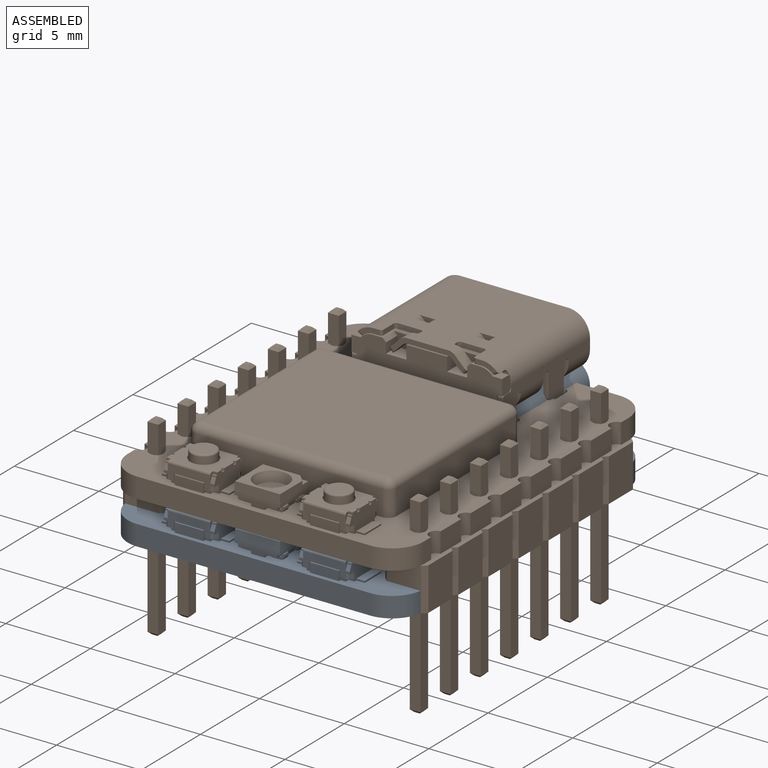
[diagram: assembled view]
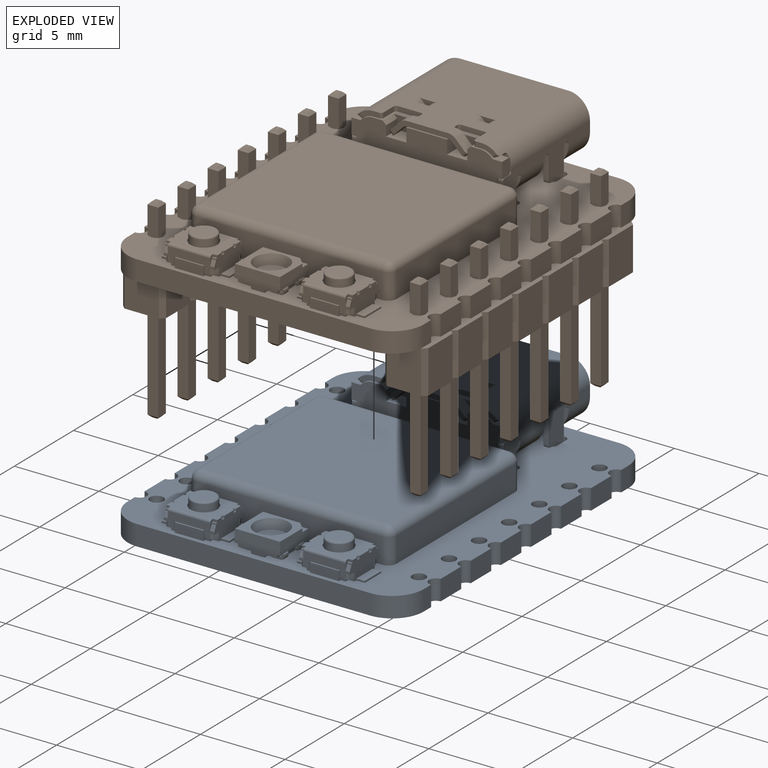
[diagram: exploded view]
GUIDED TOUR — FREECAD ASSEMBLY "Seeed_Studio_Xiao_RP2040"

This assembly has 2 components, labeled P0..P1 below (a component is one placed body or linked part; the same part can appear more than once), held together by 0 modeled joints plus 1 derived contact edge. A joint is a constraint between two components; its type names the relative motion it leaves free:
  CONTACT — a derived adjacency edge — the two components touch in the source model (clearance under 2% of the assembly's diagonal); it is measured from the geometry, not a modeled constraint.
Axis/direction vectors are unit vectors and 'through' points are millimeter coordinates, both in the assembly's world frame.

MATES
  1. CONTACT "contact_0_1": P0 <-> P1, contact direction (0.000, 0.000, 1.000) through (1.23, 6.20, 4.20) mm (derived from contact, not a modeled constraint)

ASSEMBLY ORDER
  1. P0 — the base component [order heuristic]
  2. P1 [order heuristic]
Order-tag legend:
  [order heuristic] — this assembly is geometrically interlocked (no collision-free removal order exists), so components are listed in mate-graph order; insertion feasibility is not verified.

Of the 2 components, 1 carries a construction recipe — the FreeCAD feature program (sketches with constraints, then the solid features that consume them) that regenerates the part from scratch, quoted from this document or from the linked companion document it references; the rest are supplied as boundary geometry only. The tour below walks the components in assembly order: each is shown spotlighted twice — in the assembled view, then in the exploded view, where a leader line traces a displaced component back to its assembled socket (components that stay in place when exploded have no leader line; saturated green if recipe-attached, orange if geometry-only; every other component desaturated gray) — followed by its recipe or geometry summary and the mates that hold it.
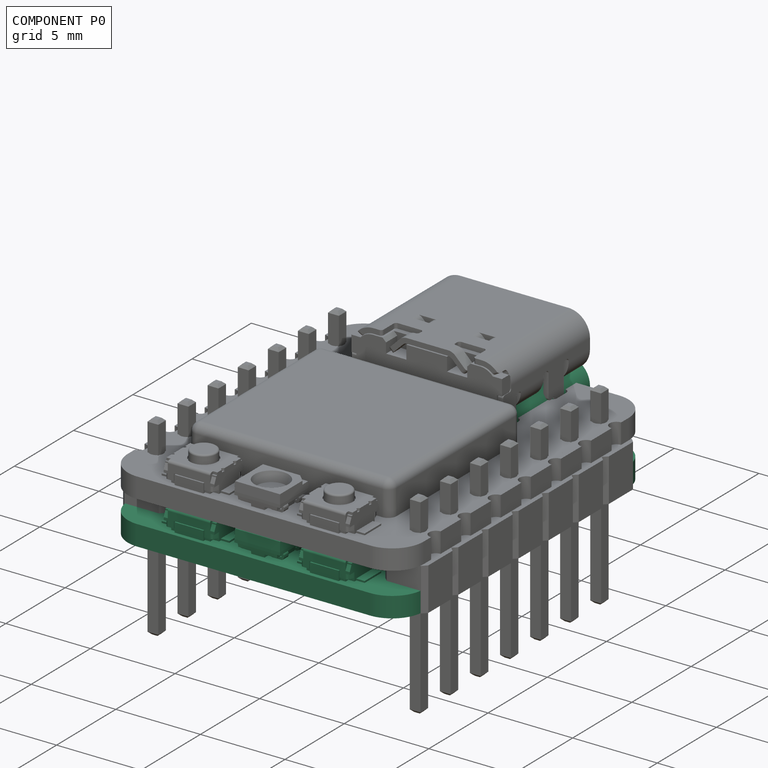
[diagram: component P0 — assembled]
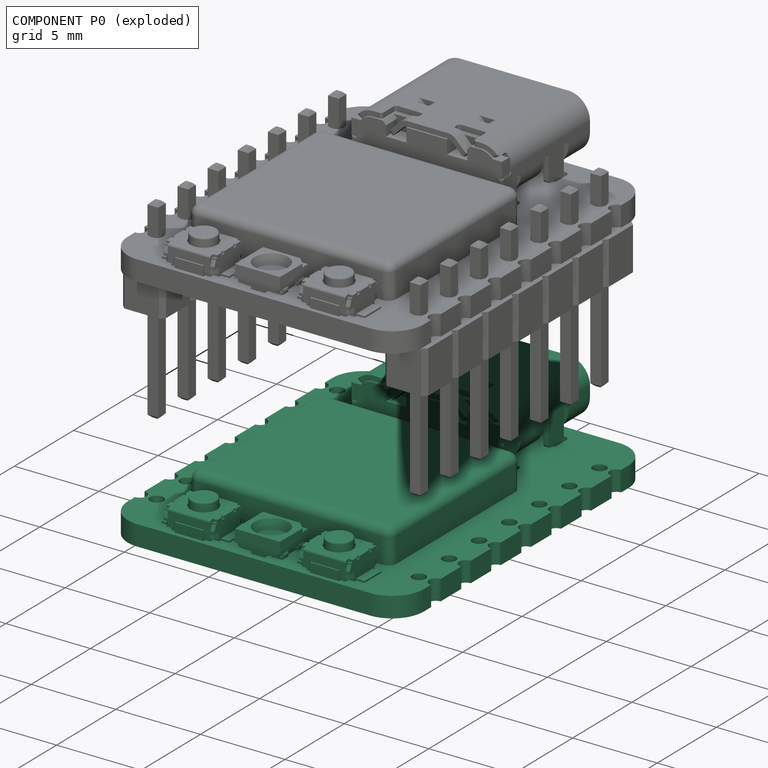
[diagram: component P0 — exploded]
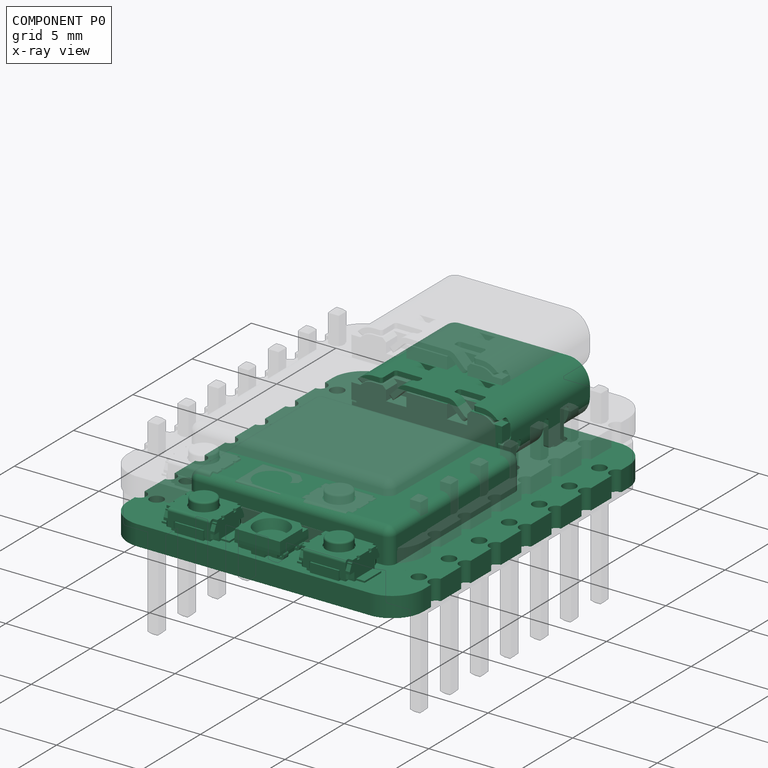
[diagram: component P0 — x-ray view]
COMPONENT P0 — recipe-attached ("Seeed_Studio_Xiao_RP2040", modeled in this document).
Held by: resting contact with P1 (derived edge).
Construction recipe (the document's own serialized feature program — sketch geometry with constraints, then the solid features built on it; lengths are millimeters unless a unit is written):

FEATURE [Sketcher::SketchObject] Sketch
  ArcFitTolerance = 1e-06
  AttachmentSupport = -> [XY_Plane001]
  FullyConstrained = true
  MakeInternals = false
  MapMode = 5
  sketch-geometry (10):
    g0: LineSegment StartX=-6.87 StartY=-10.5 StartZ=0 EndX=6.87 EndY=-10.5 EndZ=0
    g1: LineSegment StartX=8.75 StartY=-8.62 StartZ=0 EndX=8.75 EndY=8.62 EndZ=0
    g2: LineSegment StartX=6.87 StartY=10.5 StartZ=0 EndX=-6.87 EndY=10.5 EndZ=0
    g3: LineSegment StartX=-8.75 StartY=8.62 StartZ=0 EndX=-8.75 EndY=-8.62 EndZ=0
    g4: ArcOfCircle CenterX=-6.87 CenterY=-8.62 CenterZ=0 NormalX=0 NormalY=0 NormalZ=1 AngleXU=0 Radius=1.88 StartAngle=3.14159 EndAngle=4.71239
    g5: ArcOfCircle CenterX=6.87 CenterY=-8.62 CenterZ=0 NormalX=0 NormalY=0 NormalZ=1 AngleXU=0 Radius=1.88 StartAngle=4.71239 EndAngle=6.28319
    g6: ArcOfCircle CenterX=6.87 CenterY=8.62 CenterZ=0 NormalX=0 NormalY=0 NormalZ=1 AngleXU=0 Radius=1.88 StartAngle=4.83e-14 EndAngle=1.5708
    g7: ArcOfCircle CenterX=-6.87 CenterY=8.62 CenterZ=0 NormalX=0 NormalY=0 NormalZ=1 AngleXU=0 Radius=1.88 StartAngle=1.5708 EndAngle=3.14159
    g8: GeomPoint [constr] X=8.75 Y=10.5 Z=0
    g9: GeomPoint [constr] X=0 Y=0 Z=0
  constraints (22):
    c: Tangent(g0,g4) = -1.5708
    c: Tangent(g0,g5) = -1.5708
    c: Tangent(g1,g5) = -1.5708
    c: Tangent(g1,g6) = -1.5708
    c: Tangent(g2,g6) = -1.5708
    c: Tangent(g2,g7) = -1.5708
    c: Tangent(g3,g7) = -1.5708
    c: Tangent(g3,g4) = -1.5708
    c: Horizontal(g0)
    c: Horizontal(g2)
    c: Vertical(g1)
    c: Vertical(g3)
    c: Equal(g4,g5)
    c: Equal(g5,g6)
    c: Equal(g6,g7)
    c: Symmetric(g2,g0,g9)
    c: PointOnObject(g8,g1)
    c: PointOnObject(g8,g2)
    c: Distance(g1,g3) = 17.5
    c: Distance(g0,g2) = 21
    c: Radius(g5) = 1.88
    c: Coincident(g9,g-1)
FEATURE [PartDesign::Pad] Pad  label="Pad-Main"
  Direction = (0,0,1)
  Length = 1.2
  Length2 = 10
  Profile = -> Sketch
  ReferenceAxis = -> Sketch [N_Axis]
  Refine = true
  Suppressed = false
  Type = 0
FEATURE [Sketcher::SketchObject] Sketch005
  ArcFitTolerance = 1e-06
  AttachmentSupport = -> [XY_Plane001]
  ExternalGeometry = -> [Pad]
  FullyConstrained = true
  MakeInternals = false
  MapMode = 5
  sketch-geometry (7):
    g0: LineSegment StartX=-8.75 StartY=8.62 StartZ=0 EndX=-7.75 EndY=8.62 EndZ=0
    g1: LineSegment StartX=-8.75 StartY=8.62 StartZ=0 EndX=-8.75 EndY=8.0375 EndZ=0
    g2: LineSegment StartX=-8.75 StartY=7.2025 StartZ=0 EndX=-8.75 EndY=6.62 EndZ=0
    g3: LineSegment StartX=-8.75 StartY=6.62 StartZ=0 EndX=-7.75 EndY=6.62 EndZ=0
    g4: ArcOfCircle CenterX=-8.75 CenterY=7.62 CenterZ=0 NormalX=0 NormalY=0 NormalZ=1 AngleXU=0 Radius=0.4175 StartAngle=4.71239 EndAngle=7.85398
    g5: ArcOfCircle CenterX=-7.75 CenterY=7.62 CenterZ=0 NormalX=0 NormalY=0 NormalZ=1 AngleXU=0 Radius=1 StartAngle=4.71239 EndAngle=7.85398
    g6: Circle CenterX=-7.75 CenterY=7.62 CenterZ=0 NormalX=0 NormalY=0 NormalZ=1 AngleXU=0 Radius=0.4175
  constraints (19):
    c: Horizontal(g0)
    c: Coincident(g1,g0)
    c: Coincident(g3,g2)
    c: Horizontal(g3)
    c: Coincident(g4,g1)
    c: Coincident(g4,g2)
    c: Tangent(g5,g3) = -1.5708
    c: Tangent(g5,g0) = 1.5708
    c: Perpendicular(g4,g2)
    c: Radius(g5) = 1
    c: Coincident(g6,g5)
    c: Diameter(g6) = 0.835
    c: Equal(g6,g4)
    c: Horizontal(g4,g5)
    c: DistanceX(g0,g0) = 1
    c: Vertical(g1)
    c: Vertical(g2)
    c: Perpendicular(g4,g1)
    c: Coincident(g0,g-3)
FEATURE [PartDesign::Plane] DatumPlane
  AttachmentOffset = pos=(0,0,0.6) rot=(0,0,1;0rad)
  AttachmentSupport = -> [XY_Plane001]
  Length = 60
  MapMode = 5
  Placement = pos=(0,0,0.6) rot=(0,0,1;0rad)
  ResizeMode = 0
  Width = 60
FEATURE [Sketcher::SketchObject] Sketch006
  ArcFitTolerance = 1e-06
  AttachmentSupport = -> [XY_Plane001]
  ExternalGeometry = -> [Pad]
  FullyConstrained = true
  MakeInternals = false
  MapMode = 5
  sketch-geometry (7):
    g0: LineSegment StartX=-8.75 StartY=8.62 StartZ=0 EndX=-8.715 EndY=8.62 EndZ=0
    g1: LineSegment StartX=-8.715 StartY=8.62 StartZ=0 EndX=-8.715 EndY=8.05359 EndZ=0
    g2: LineSegment StartX=-8.75 StartY=8.62 StartZ=0 EndX=-8.75 EndY=6.62 EndZ=0
    g3: LineSegment StartX=-8.75 StartY=6.62 StartZ=0 EndX=-8.715 EndY=6.62 EndZ=0
    g4: LineSegment StartX=-8.715 StartY=6.62 StartZ=0 EndX=-8.715 EndY=7.18641 EndZ=0
    g5: Circle CenterX=-7.75 CenterY=7.62 CenterZ=0 NormalX=0 NormalY=0 NormalZ=1 AngleXU=0 Radius=0.435
    g6: ArcOfCircle CenterX=-8.75 CenterY=7.62 CenterZ=0 NormalX=0 NormalY=0 NormalZ=1 AngleXU=0 Radius=0.435 StartAngle=4.79294 EndAngle=7.77343
  constraints (21):
    c: Coincident(g0,g-3)
    c: Horizontal(g0)
    c: Coincident(g1,g0)
    c: Vertical(g1)
    c: Coincident(g2,g0)
    c: PointOnObject(g2,g-3)
    c: Coincident(g3,g2)
    c: Coincident(g4,g3)
    c: Vertical(g4)
    c: Coincident(g6,g1)
    c: Coincident(g6,g4)
    c: PointOnObject(g6,g2)
    c: Equal(g1,g4)
    c: DistanceY(g2,g2) = 2
    c: Distance(g3,g3) = 0.035
    c: Equal(g3,g0)
    c: Diameter(g5) = 0.87
    c: Equal(g5,g6)
    c: Horizontal(g6,g5)
    c: DistanceX(g6,g5) = 1
    c: Horizontal(g3)
FEATURE [PartDesign::Pocket] Pocket  label="Pocket-PadBottom"
  BaseFeature = -> Pad
  Direction = (0,0,-1)
  Length = 0.035
  Length2 = 5
  Profile = -> Sketch005
  ReferenceAxis = -> Sketch005 [N_Axis]
  Refine = true
  Reversed = true
  Suppressed = false
  Type = 0
FEATURE [PartDesign::Pocket] Pocket001  label="Pocket-PadSide"
  BaseFeature = -> Pocket
  Direction = (0,0,-1)
  Length = 0
  Length2 = 5
  Profile = -> Sketch006
  ReferenceAxis = -> Sketch006 [N_Axis]
  Refine = true
  Reversed = true
  Suppressed = false
  Type = 3
  UpToFace = -> Pocket [Face5]
FEATURE [PartDesign::Mirrored] Mirrored
  MirrorPlane = -> DatumPlane
  Refine = true
  Suppressed = false
  TransformMode = 0
FEATURE [PartDesign::LinearPattern] LinearPattern
  Direction = -> Y_Axis001
  Length = 15.24
  Mode = 1
  Occurrences = 7
  Offset = 2.54
  Refine = true
  Reversed = true
  Suppressed = false
  TransformMode = 0
FEATURE [PartDesign::Mirrored] Mirrored001
  MirrorPlane = -> YZ_Plane001
  Refine = true
  Suppressed = false
  TransformMode = 0
FEATURE [PartDesign::MultiTransform] MultiTransform  label="MultiTransform-PadTop+Bottom"
  BaseFeature = -> Pocket001
  Originals = -> [Pocket]
  Refine = true
  Suppressed = false
  TransformMode = 0
  Transformations = -> [Mirrored,LinearPattern,Mirrored001]
FEATURE [PartDesign::LinearPattern] LinearPattern001
  Direction = -> Y_Axis001
  Length = 15.24
  Mode = 1
  Occurrences = 7
  Offset = 2.54
  Refine = true
  Reversed = true
  Suppressed = false
  TransformMode = 0
FEATURE [PartDesign::Mirrored] Mirrored002
  MirrorPlane = -> YZ_Plane001
  Refine = true
  Suppressed = false
  TransformMode = 0
FEATURE [PartDesign::MultiTransform] MultiTransform001  label="MultiTransform-PadSide"
  BaseFeature = -> MultiTransform
  Originals = -> [Pocket001]
  Refine = true
  Suppressed = false
  TransformMode = 0
  Transformations = -> [LinearPattern001,Mirrored002]
FEATURE [PartDesign::SubShapeBinder] Binder001
  BindCopyOnChange = 0
  BindMode = 0
  ClaimChildren = false
  Context = -> Part [Body002.Binder001.]
  Fuse = false
  MakeFace = true
  OffsetFill = false
  OffsetIntersection = false
  OffsetJoinType = 0
  OffsetOpenResult = false
  PartialLoad = false
  Refine = true
  Relative = true
  Support = -> [Body]
  _Version = 2
FEATURE [Sketcher::SketchObject] Sketch007
  ArcFitTolerance = 1e-06
  AttachmentSupport = -> [Binder001]
  FullyConstrained = true
  MakeInternals = false
  MapMode = 5
  Placement = pos=(0,0,1.2) rot=(0,0,1;0rad)
  sketch-geometry (10):
    g0: LineSegment StartX=-5.5 StartY=-7.5 StartZ=0 EndX=5.5 EndY=-7.5 EndZ=0
    g1: LineSegment StartX=6 StartY=-7 StartZ=0 EndX=6 EndY=3 EndZ=0
    g2: LineSegment StartX=5.5 StartY=3.5 StartZ=0 EndX=-5.5 EndY=3.5 EndZ=0
    g3: LineSegment StartX=-6 StartY=3 StartZ=0 EndX=-6 EndY=-7 EndZ=0
    g4: ArcOfCircle CenterX=-5.5 CenterY=-7 CenterZ=0 NormalX=0 NormalY=0 NormalZ=1 AngleXU=0 Radius=0.5 StartAngle=3.14159 EndAngle=4.71239
    g5: ArcOfCircle CenterX=5.5 CenterY=-7 CenterZ=0 NormalX=0 NormalY=0 NormalZ=1 AngleXU=0 Radius=0.5 StartAngle=4.71239 EndAngle=6.28319
    g6: ArcOfCircle CenterX=5.5 CenterY=3 CenterZ=0 NormalX=0 NormalY=0 NormalZ=1 AngleXU=0 Radius=0.5 StartAngle=0 EndAngle=1.5708
    g7: ArcOfCircle CenterX=-5.5 CenterY=3 CenterZ=0 NormalX=0 NormalY=0 NormalZ=1 AngleXU=0 Radius=0.5 StartAngle=1.5708 EndAngle=3.14159
    g8: GeomPoint [constr] X=6 Y=3.5 Z=0
    g9: GeomPoint [constr] X=0 Y=-2 Z=0
  constraints (23):
    c: Tangent(g0,g4) = -1.5708
    c: Tangent(g0,g5) = -1.5708
    c: Tangent(g1,g5) = -1.5708
    c: Tangent(g1,g6) = -1.5708
    c: Tangent(g2,g6) = -1.5708
    c: Tangent(g2,g7) = -1.5708
    c: Tangent(g3,g7) = -1.5708
    c: Tangent(g3,g4) = -1.5708
    c: Horizontal(g0)
    c: Horizontal(g2)
    c: Vertical(g1)
    c: Vertical(g3)
    c: Equal(g4,g5)
    c: Equal(g5,g6)
    c: Equal(g6,g7)
    c: Symmetric(g2,g0,g9)
    c: PointOnObject(g8,g1)
    c: PointOnObject(g8,g2)
    c: Distance(g1,g3) = 12
    c: Distance(g0,g2) = 11
    c: Radius(g5) = 0.5
    c: PointOnObject(g9,g-2)
    c: Distance(g-1,g9) = 2
FEATURE [PartDesign::Pad] Pad005
  Direction = (0,0,1)
  Length = 2
  Length2 = 10
  Profile = -> Sketch007
  ReferenceAxis = -> Sketch007 [N_Axis]
  Refine = true
  Suppressed = false
  Type = 0
FEATURE [PartDesign::Fillet] Fillet
  Base = -> Pad005 [Face10]
  BaseFeature = -> Pad005
  Radius = 0.5
  Refine = true
  SupportTransform = false
  Suppressed = false
  UseAllEdges = false
FEATURE [PartDesign::Body] Body002  label="Shield"
  AllowCompound = false
  Group = -> [Binder001,Sketch007,Pad005,Fillet]
  Origin = -> Origin004
  Tip = -> Fillet
FEATURE [Sketcher::SketchObject] Sketch008
  ArcFitTolerance = 1e-06
  AttachmentSupport = -> [MultiTransform001]
  FullyConstrained = true
  MakeInternals = false
  MapMode = 5
  Placement = pos=(0,0,1.2) rot=(0,0,1;0rad)
  sketch-geometry (14):
    g0: GeomPoint X=0 Y=7.825 Z=0
    g1: Circle CenterX=-2.89 CenterY=5.22 CenterZ=0 NormalX=0 NormalY=0 NormalZ=1 AngleXU=0 Radius=0.325
    g2: ArcOfCircle CenterX=-4.32 CenterY=4.17 CenterZ=0 NormalX=0 NormalY=0 NormalZ=1 AngleXU=0 Radius=0.335 StartAngle=3.14159 EndAngle=6.28319
    g3: ArcOfCircle CenterX=-4.32 CenterY=5.27 CenterZ=0 NormalX=0 NormalY=0 NormalZ=1 AngleXU=0 Radius=0.335 StartAngle=-9e-16 EndAngle=3.14159
    g4: LineSegment StartX=-4.655 StartY=4.17 StartZ=0 EndX=-4.655 EndY=5.27 EndZ=0
    g5: LineSegment StartX=-3.985 StartY=4.17 StartZ=0 EndX=-3.985 EndY=5.27 EndZ=0
    g6: LineSegment [constr] StartX=-4.32 StartY=5.605 StartZ=0 EndX=-4.32 EndY=3.835 EndZ=0
    g7: GeomPoint [constr] X=-4.32 Y=4.72 Z=0
    g8: ArcOfCircle CenterX=-4.32 CenterY=8.5175 CenterZ=0 NormalX=0 NormalY=0 NormalZ=1 AngleXU=0 Radius=0.335 StartAngle=3.14159 EndAngle=6.28319
    g9: ArcOfCircle CenterX=-4.32 CenterY=9.2825 CenterZ=0 NormalX=0 NormalY=0 NormalZ=1 AngleXU=0 Radius=0.335 StartAngle=1.8e-15 EndAngle=3.14159
    g10: LineSegment StartX=-4.655 StartY=8.5175 StartZ=0 EndX=-4.655 EndY=9.2825 EndZ=0
    g11: LineSegment StartX=-3.985 StartY=8.5175 StartZ=0 EndX=-3.985 EndY=9.2825 EndZ=0
    g12: LineSegment [constr] StartX=-4.32 StartY=9.6175 StartZ=0 EndX=-4.32 EndY=8.1825 EndZ=0
    g13: GeomPoint [constr] X=-4.32 Y=8.9 Z=0
  constraints (35):
    c: PointOnObject(g0,g-2)
    c: DistanceY(g-1,g0) = 7.825
    c: Diameter(g1) = 0.65
    c: DistanceX(g1,g0) = 2.89
    c: DistanceY(g1,g0) = 2.605
    c: Tangent(g2,g4) = 1.5708
    c: Tangent(g2,g5) = -1.5708
    c: Tangent(g3,g4) = 1.5708
    c: Tangent(g3,g5) = -1.5708
    c: Equal(g2,g3)
    c: Vertical(g4)
    c: Radius(g3) = 0.335
    c: PointOnObject(g6,g3)
    c: PointOnObject(g6,g2)
    c: Vertical(g6)
    c: DistanceY(g6,g6) = 1.77
    c: Perpendicular(g3,g6)
    c: Symmetric(g6,g6,g7)
    c: DistanceX(g7,g-1) = 4.32
    c: DistanceY(g7,g0) = 3.105
    c: Tangent(g8,g10) = 1.5708
    c: Tangent(g8,g11) = -1.5708
    c: Tangent(g9,g10) = 1.5708
    c: Tangent(g9,g11) = -1.5708
    c: Equal(g8,g9)
    c: Vertical(g11)
    c: Equal(g8,g3)
    c: PointOnObject(g12,g9)
    c: PointOnObject(g12,g8)
    c: Vertical(g12)
    c: Symmetric(g12,g12,g13)
    c: DistanceY(g0,g13) = 1.075
    c: DistanceY(g12,g12) = 1.435
    c: Vertical(g13,g7)
    c: Perpendicular(g9,g12)
FEATURE [PartDesign::Pocket] Pocket002  label="Pocket-USBHoles"
  BaseFeature = -> MultiTransform001
  Direction = (0,0,-1)
  Length = 5
  Length2 = 5
  Profile = -> Sketch008
  ReferenceAxis = -> Sketch008 [N_Axis]
  Refine = true
  Suppressed = false
  Type = 1
FEATURE [PartDesign::Mirrored] Mirrored003  label="Mirrored-USBHoles"
  BaseFeature = -> Pocket002
  MirrorPlane = -> YZ_Plane001
  Originals = -> [Pocket002]
  Refine = true
  Suppressed = false
  TransformMode = 0
FEATURE [Sketcher::SketchObject] Sketch009
  ArcFitTolerance = 1e-06
  AttachmentSupport = -> [Mirrored003]
  ExternalGeometry = -> [Mirrored003]
  FullyConstrained = true
  MakeInternals = false
  MapMode = 5
  Placement = pos=(0,0,1.2) rot=(0,0,1;0rad)
  sketch-geometry (8):
    g0: ArcOfCircle CenterX=-4.32 CenterY=9.2825 CenterZ=0 NormalX=0 NormalY=0 NormalZ=1 AngleXU=0 Radius=0.5 StartAngle=-9e-16 EndAngle=3.14159
    g1: ArcOfCircle CenterX=-4.32 CenterY=8.5175 CenterZ=0 NormalX=0 NormalY=0 NormalZ=1 AngleXU=0 Radius=0.5 StartAngle=3.14159 EndAngle=6.28319
    g2: LineSegment StartX=-3.82 StartY=9.2825 StartZ=0 EndX=-3.82 EndY=8.5175 EndZ=0
    g3: LineSegment StartX=-4.82 StartY=9.2825 StartZ=0 EndX=-4.82 EndY=8.5175 EndZ=0
    g4: ArcOfCircle CenterX=-4.32 CenterY=5.27 CenterZ=0 NormalX=0 NormalY=0 NormalZ=1 AngleXU=0 Radius=0.5 StartAngle=2.659e-12 EndAngle=3.14159
    g5: ArcOfCircle CenterX=-4.32 CenterY=4.17 CenterZ=0 NormalX=0 NormalY=0 NormalZ=1 AngleXU=0 Radius=0.5 StartAngle=3.14159 EndAngle=6.28319
    g6: LineSegment StartX=-3.82 StartY=5.27 StartZ=0 EndX=-3.82 EndY=4.17 EndZ=0
    g7: LineSegment StartX=-4.82 StartY=5.27 StartZ=0 EndX=-4.82 EndY=4.17 EndZ=0
  constraints (16):
    c: Tangent(g0,g2) = 1.5708
    c: Tangent(g0,g3) = -1.5708
    c: Tangent(g1,g2) = 1.5708
    c: Tangent(g1,g3) = -1.5708
    c: Equal(g0,g1)
    c: Radius(g1) = 0.5
    c: Coincident(g-5,g1)
    c: Coincident(g-3,g0)
    c: Tangent(g4,g6) = 1.5708
    c: Tangent(g4,g7) = -1.5708
    c: Tangent(g5,g6) = 1.5708
    c: Tangent(g5,g7) = -1.5708
    c: Equal(g4,g5)
    c: Equal(g4,g1)
    c: Coincident(g-4,g4)
    c: Coincident(g5,g-6)
FEATURE [PartDesign::Pocket] Pocket003  label="Pocket-USBHolesPlating"
  BaseFeature = -> Mirrored003
  Direction = (0,0,-1)
  Length = 0.035
  Length2 = 5
  Profile = -> Sketch009
  ReferenceAxis = -> Sketch009 [N_Axis]
  Refine = true
  Suppressed = false
  Type = 0
FEATURE [PartDesign::Mirrored] Mirrored004
  MirrorPlane = -> YZ_Plane001
  Refine = true
  Suppressed = false
  TransformMode = 0
FEATURE [PartDesign::Mirrored] Mirrored005
  MirrorPlane = -> DatumPlane
  Refine = true
  Suppressed = false
  TransformMode = 0
FEATURE [PartDesign::MultiTransform] MultiTransform002
  BaseFeature = -> Pocket003
  Originals = -> [Pocket003]
  Refine = true
  Suppressed = false
  TransformMode = 0
  Transformations = -> [Mirrored004,Mirrored005]
FEATURE [Sketcher::SketchObject] Sketch014
  ArcFitTolerance = 1e-06
  AttachmentSupport = -> [XY_Plane001]
  FullyConstrained = true
  MakeInternals = false
  MapMode = 5
  sketch-geometry (2):
    g0: Circle CenterX=-4 CenterY=-9 CenterZ=0 NormalX=0 NormalY=0 NormalZ=1 AngleXU=0 Radius=0.35
    g1: Circle CenterX=4 CenterY=-9 CenterZ=0 NormalX=0 NormalY=0 NormalZ=1 AngleXU=0 Radius=0.35
  constraints (5):
    c: Diameter(g0) = 0.7
    c: DistanceY(g0,g-1) = 9
    c: DistanceX(g0,g-1) = 4
    c: Equal(g0,g1)
    c: Symmetric(g0,g1,g-2)
FEATURE [PartDesign::Pocket] Pocket004  label="Pocket-ButtonAlignmentPin"
  BaseFeature = -> MultiTransform002
  Direction = (0,0,-1)
  Length = 5
  Length2 = 5
  Profile = -> Sketch014
  ReferenceAxis = -> Sketch014 [N_Axis]
  Refine = true
  Reversed = true
  Suppressed = false
  Type = 1
FEATURE [PartDesign::Body] Body  label="PCB"
  AllowCompound = false
  Group = -> [Sketch,Pad,DatumPlane,Sketch005,Sketch006,Pocket,Pocket001,MultiTransform,Mirrored,LinearPattern,Mirrored001,MultiTransform001,LinearPattern001,Mirrored002,Sketch008,Pocket002,Mirrored003,Sketch009,Pocket003,MultiTransform002,Mirrored004,Mirrored005,Sketch014,Pocket004]
  Origin = -> Origin001
  Tip = -> Pocket004
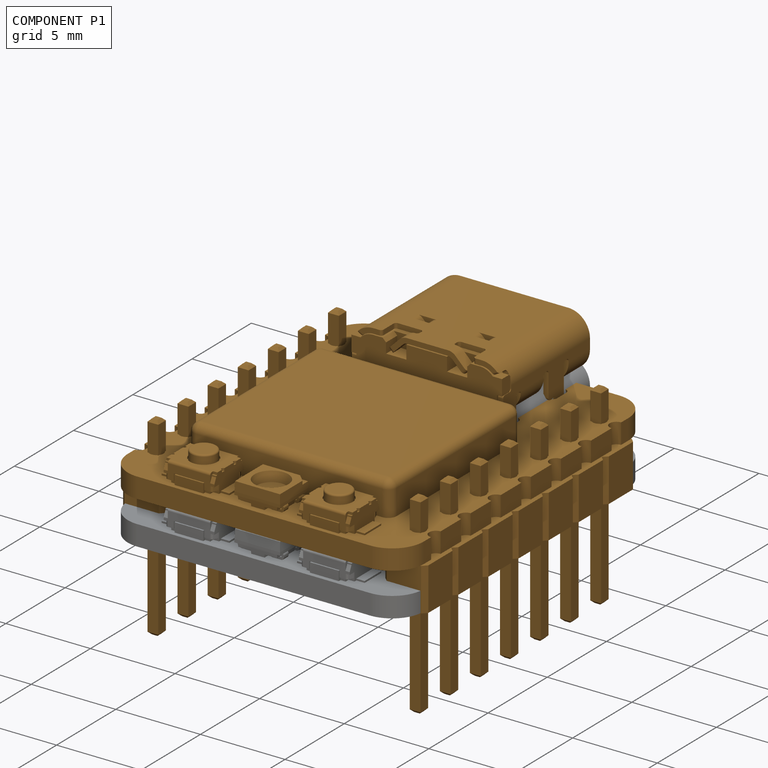
[diagram: component P1 — assembled]
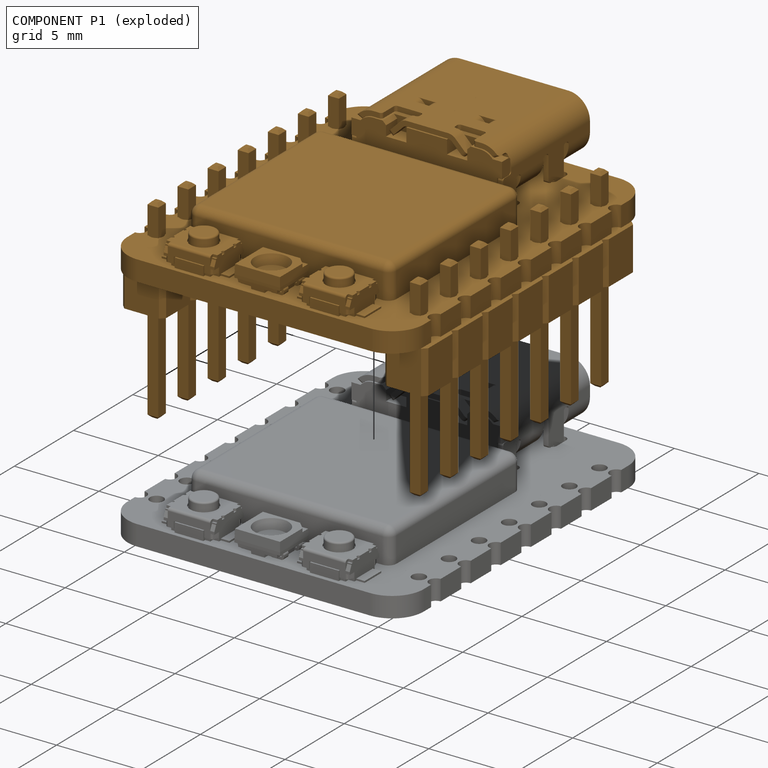
[diagram: component P1 — exploded]
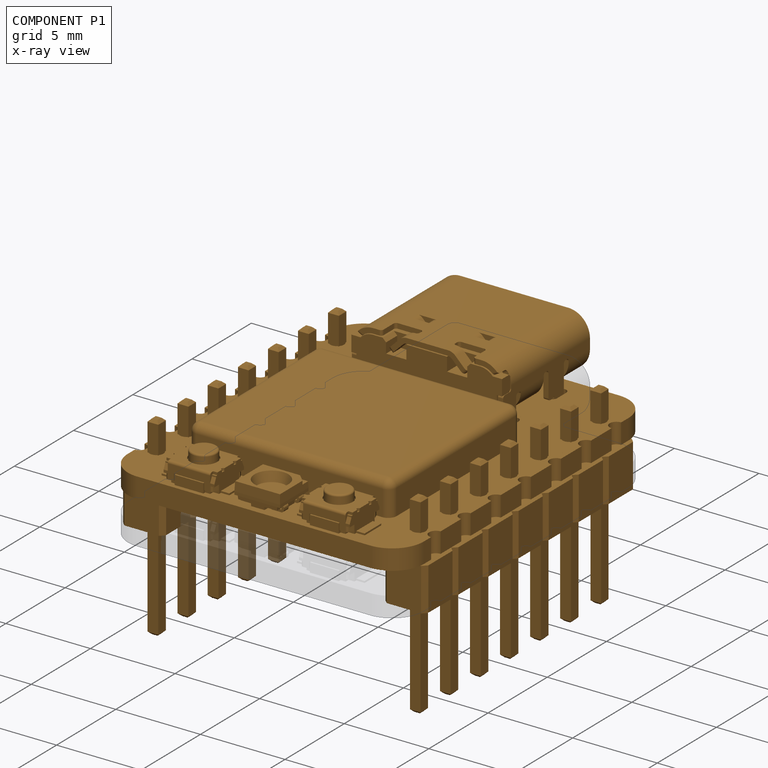
[diagram: component P1 — x-ray view]
COMPONENT P1 — geometry summary ("Seeed_Studio_Xiao_RP2040-THT"; no construction recipe available for this part):
  bounding box: 22.0 x 18.0 x 13.1 mm
  tessellated surface: 111,098 triangles
  volume: 1376 mm^3 (27% of its bounding box)
  symmetry: mirror-symmetric across its x mid-plane
Held by: resting contact with P0 (derived edge).
PROVENANCE & LICENSES
Assembly and component geometry: a FreeCAD (.FCStd) document from a public repository crawl; components, placements and joints were extracted with FreeCAD and each solid tessellated.
Construction recipes: the document's own serialized feature recipes (and, for linked parts, the recipes of companion documents from the same project).
License: as declared in the source repository (recorded in the dataset sidecar).
Joints: native FreeCAD joints and A2plus constraints are mapped to standard mate types; edges marked 'derived from contact' connect touching components and are measured from the geometry, not modeled.
Verification: 1 of this assembly's 2 components carries a construction recipe (1 from this document itself); the rest are geometry-only. Every component's tessellation passed the extraction mesh gates (mesh-volume checksum against the B-rep where available, bounding-box inflation <= 2%).
Renders: orthographic iso camera (az 35 / el 25); the floor grid conveys scale (grid pitch printed in each image; no ruler). In the exploded view each component is displaced by its stored offset vector: the offsets alone carry the explosion direction (mate normal/axis signs are not orientation cues and do not encode it), and separation distances are assigned per mate-chain, not proportionally to assembly-order depth.
